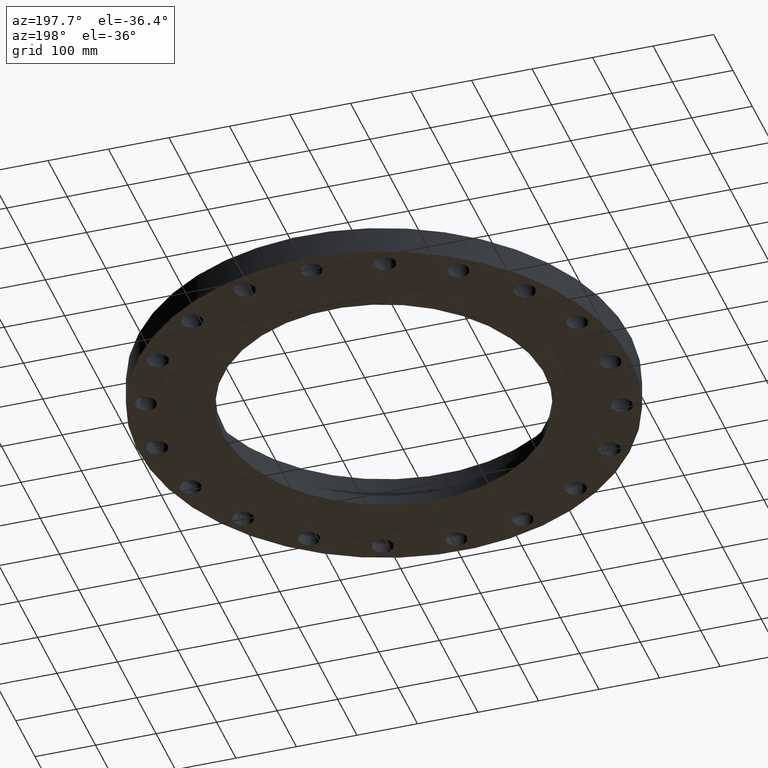
[diagram: clean part render]
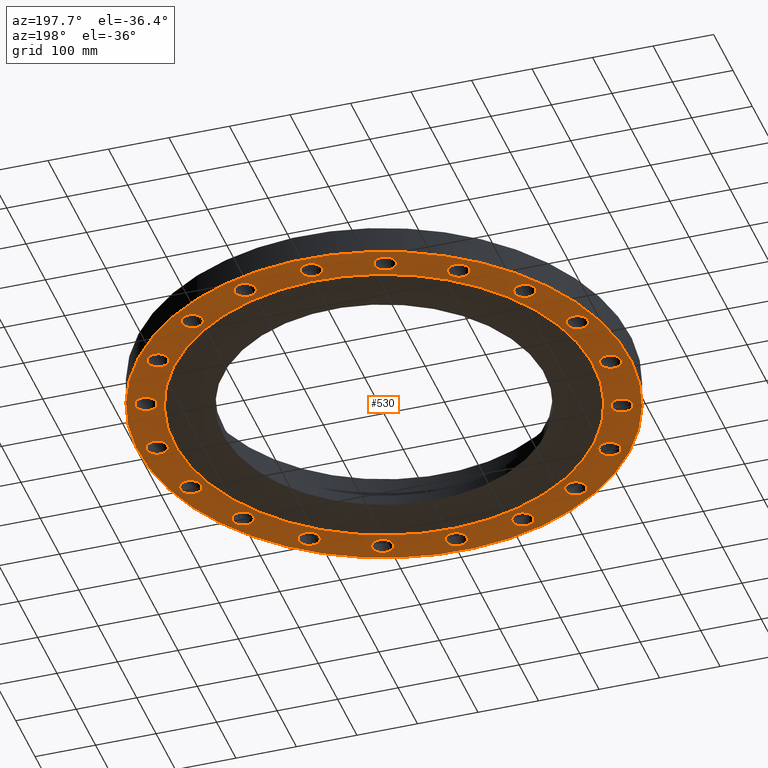
[diagram: same view with one face highlighted and labeled with its STEP entity id]
A machine part, auxiliary view. The second image highlights one B-rep face of the part: STEP entity #530.
In plain terms, the highlighted planar face has unit normal (0, 0, -1).
Its self-contained STEP definition (entity closure, byte-faithful):
#123=AXIS2_PLACEMENT_3D('Plane Axis2P3D',#120,#121,#122) ;
#127=AXIS2_PLACEMENT_3D('Circle Axis2P3D',#125,#126,$) ;
#136=AXIS2_PLACEMENT_3D('Circle Axis2P3D',#134,#135,$) ;
#150=AXIS2_PLACEMENT_3D('Circle Axis2P3D',#148,#149,$) ;
#159=AXIS2_PLACEMENT_3D('Circle Axis2P3D',#157,#158,$) ;
#168=AXIS2_PLACEMENT_3D('Circle Axis2P3D',#166,#167,$) ;
#177=AXIS2_PLACEMENT_3D('Circle Axis2P3D',#175,#176,$) ;
#190=AXIS2_PLACEMENT_3D('Circle Axis2P3D',#188,#189,$) ;
#199=AXIS2_PLACEMENT_3D('Circle Axis2P3D',#197,#198,$) ;
#208=AXIS2_PLACEMENT_3D('Circle Axis2P3D',#206,#207,$) ;
#217=AXIS2_PLACEMENT_3D('Circle Axis2P3D',#215,#216,$) ;
#226=AXIS2_PLACEMENT_3D('Circle Axis2P3D',#224,#225,$) ;
#235=AXIS2_PLACEMENT_3D('Circle Axis2P3D',#233,#234,$) ;
#244=AXIS2_PLACEMENT_3D('Circle Axis2P3D',#242,#243,$) ;
#253=AXIS2_PLACEMENT_3D('Circle Axis2P3D',#251,#252,$) ;
#262=AXIS2_PLACEMENT_3D('Circle Axis2P3D',#260,#261,$) ;
#271=AXIS2_PLACEMENT_3D('Circle Axis2P3D',#269,#270,$) ;
#280=AXIS2_PLACEMENT_3D('Circle Axis2P3D',#278,#279,$) ;
#289=AXIS2_PLACEMENT_3D('Circle Axis2P3D',#287,#288,$) ;
#298=AXIS2_PLACEMENT_3D('Circle Axis2P3D',#296,#297,$) ;
#307=AXIS2_PLACEMENT_3D('Circle Axis2P3D',#305,#306,$) ;
#316=AXIS2_PLACEMENT_3D('Circle Axis2P3D',#314,#315,$) ;
#325=AXIS2_PLACEMENT_3D('Circle Axis2P3D',#323,#324,$) ;
#334=AXIS2_PLACEMENT_3D('Circle Axis2P3D',#332,#333,$) ;
#343=AXIS2_PLACEMENT_3D('Circle Axis2P3D',#341,#342,$) ;
#352=AXIS2_PLACEMENT_3D('Circle Axis2P3D',#350,#351,$) ;
#361=AXIS2_PLACEMENT_3D('Circle Axis2P3D',#359,#360,$) ;
#370=AXIS2_PLACEMENT_3D('Circle Axis2P3D',#368,#369,$) ;
#379=AXIS2_PLACEMENT_3D('Circle Axis2P3D',#377,#378,$) ;
#388=AXIS2_PLACEMENT_3D('Circle Axis2P3D',#386,#387,$) ;
#397=AXIS2_PLACEMENT_3D('Circle Axis2P3D',#395,#396,$) ;
#406=AXIS2_PLACEMENT_3D('Circle Axis2P3D',#404,#405,$) ;
#415=AXIS2_PLACEMENT_3D('Circle Axis2P3D',#413,#414,$) ;
#424=AXIS2_PLACEMENT_3D('Circle Axis2P3D',#422,#423,$) ;
#433=AXIS2_PLACEMENT_3D('Circle Axis2P3D',#431,#432,$) ;
#442=AXIS2_PLACEMENT_3D('Circle Axis2P3D',#440,#441,$) ;
#451=AXIS2_PLACEMENT_3D('Circle Axis2P3D',#449,#450,$) ;
#460=AXIS2_PLACEMENT_3D('Circle Axis2P3D',#458,#459,$) ;
#469=AXIS2_PLACEMENT_3D('Circle Axis2P3D',#467,#468,$) ;
#478=AXIS2_PLACEMENT_3D('Circle Axis2P3D',#476,#477,$) ;
#487=AXIS2_PLACEMENT_3D('Circle Axis2P3D',#485,#486,$) ;
#496=AXIS2_PLACEMENT_3D('Circle Axis2P3D',#494,#495,$) ;
#505=AXIS2_PLACEMENT_3D('Circle Axis2P3D',#503,#504,$) ;
#514=AXIS2_PLACEMENT_3D('Circle Axis2P3D',#512,#513,$) ;
#523=AXIS2_PLACEMENT_3D('Circle Axis2P3D',#521,#522,$) ;
#120=CARTESIAN_POINT('Axis2P3D Location',(0.,10.469,0.)) ;
#125=CARTESIAN_POINT('Axis2P3D Location',(0.,0.,0.)) ;
#129=CARTESIAN_POINT('Vertex',(-6.53217296351,-11.9570624058,0.)) ;
#131=CARTESIAN_POINT('Vertex',(6.53217296351,11.9570624058,0.)) ;
#134=CARTESIAN_POINT('Axis2P3D Location',(0.,0.,0.)) ;
#148=CARTESIAN_POINT('Axis2P3D Location',(0.,0.,0.)) ;
#152=CARTESIAN_POINT('Vertex',(-7.6708086177,-14.0413209903,1.95818864186E-015)) ;
#154=CARTESIAN_POINT('Vertex',(7.6708086177,14.0413209903,1.95818864186E-015)) ;
#157=CARTESIAN_POINT('Axis2P3D Location',(0.,0.,0.)) ;
#166=CARTESIAN_POINT('Axis2P3D Location',(14.7500000001,0.,0.)) ;
#170=CARTESIAN_POINT('Vertex',(15.3555319678,-0.330803621638,0.)) ;
#172=CARTESIAN_POINT('Vertex',(14.1444680324,0.330803621638,0.)) ;
#175=CARTESIAN_POINT('Axis2P3D Location',(14.7500000001,0.,0.)) ;
#188=CARTESIAN_POINT('Axis2P3D Location',(14.0280836154,-4.55800066705,0.)) ;
#192=CARTESIAN_POINT('Vertex',(13.5544124326,-4.05626805842,0.)) ;
#194=CARTESIAN_POINT('Vertex',(14.5017547982,-5.05973327568,0.)) ;
#197=CARTESIAN_POINT('Axis2P3D Location',(14.0280836154,-4.55800066705,0.)) ;
#206=CARTESIAN_POINT('Axis2P3D Location',(11.9330006671,-8.66983247135,0.)) ;
#210=CARTESIAN_POINT('Vertex',(11.6375565048,-8.04628395923,0.)) ;
#212=CARTESIAN_POINT('Vertex',(12.2284448294,-9.29338098346,-1.67844740731E-015)) ;
#215=CARTESIAN_POINT('Axis2P3D Location',(11.9330006671,-8.66983247135,0.)) ;
#224=CARTESIAN_POINT('Axis2P3D Location',(8.66983247135,-11.9330006671,0.)) ;
#228=CARTESIAN_POINT('Vertex',(8.58153546265,-11.2486735244,0.)) ;
#230=CARTESIAN_POINT('Vertex',(8.75812948005,-12.6173278098,0.)) ;
#233=CARTESIAN_POINT('Axis2P3D Location',(8.66983247135,-11.9330006671,0.)) ;
#242=CARTESIAN_POINT('Axis2P3D Location',(4.55800066705,-14.0280836154,0.)) ;
#246=CARTESIAN_POINT('Vertex',(4.68549393836,-13.3499645508,0.)) ;
#248=CARTESIAN_POINT('Vertex',(4.43050739573,-14.70620268,0.)) ;
#251=CARTESIAN_POINT('Axis2P3D Location',(4.55800066705,-14.0280836154,0.)) ;
#260=CARTESIAN_POINT('Axis2P3D Location',(4.12618320963E-015,-14.7500000001,0.)) ;
#264=CARTESIAN_POINT('Vertex',(0.330803621638,-14.1444680324,0.)) ;
#266=CARTESIAN_POINT('Vertex',(-0.330803621638,-15.3555319678,0.)) ;
#269=CARTESIAN_POINT('Axis2P3D Location',(4.33598913554E-015,-14.7500000001,0.)) ;
#278=CARTESIAN_POINT('Axis2P3D Location',(-4.55800066705,-14.0280836154,0.)) ;
#282=CARTESIAN_POINT('Vertex',(-4.05626805842,-13.5544124326,0.)) ;
#284=CARTESIAN_POINT('Vertex',(-5.05973327568,-14.5017547982,0.)) ;
#287=CARTESIAN_POINT('Axis2P3D Location',(-4.55800066705,-14.0280836154,0.)) ;
#296=CARTESIAN_POINT('Axis2P3D Location',(-8.66983247135,-11.9330006671,0.)) ;
#300=CARTESIAN_POINT('Vertex',(-8.04628395923,-11.6375565048,0.)) ;
#302=CARTESIAN_POINT('Vertex',(-9.29338098346,-12.2284448294,0.)) ;
#305=CARTESIAN_POINT('Axis2P3D Location',(-8.66983247135,-11.9330006671,0.)) ;
#314=CARTESIAN_POINT('Axis2P3D Location',(-11.9330006671,-8.66983247135,0.)) ;
#318=CARTESIAN_POINT('Vertex',(-11.2486735244,-8.58153546265,0.)) ;
#320=CARTESIAN_POINT('Vertex',(-12.6173278098,-8.75812948005,0.)) ;
#323=CARTESIAN_POINT('Axis2P3D Location',(-11.9330006671,-8.66983247135,0.)) ;
#332=CARTESIAN_POINT('Axis2P3D Location',(-14.0280836154,-4.55800066705,0.)) ;
#336=CARTESIAN_POINT('Vertex',(-13.3499645508,-4.68549393836,0.)) ;
#338=CARTESIAN_POINT('Vertex',(-14.70620268,-4.43050739573,0.)) ;
#341=CARTESIAN_POINT('Axis2P3D Location',(-14.0280836154,-4.55800066705,0.)) ;
#350=CARTESIAN_POINT('Axis2P3D Location',(-14.7500000001,-8.95171950564E-015,0.)) ;
#354=CARTESIAN_POINT('Vertex',(-14.1444680324,-0.330803621638,0.)) ;
#356=CARTESIAN_POINT('Vertex',(-15.3555319678,0.330803621638,0.)) ;
#359=CARTESIAN_POINT('Axis2P3D Location',(-14.7500000001,-8.95171950564E-015,0.)) ;
#368=CARTESIAN_POINT('Axis2P3D Location',(-14.0280836154,4.55800066705,0.)) ;
#372=CARTESIAN_POINT('Vertex',(-13.5544124326,4.05626805842,0.)) ;
#374=CARTESIAN_POINT('Vertex',(-14.5017547982,5.05973327568,0.)) ;
#377=CARTESIAN_POINT('Axis2P3D Location',(-14.0280836154,4.55800066705,0.)) ;
#386=CARTESIAN_POINT('Axis2P3D Location',(-11.9330006671,8.66983247135,0.)) ;
#390=CARTESIAN_POINT('Vertex',(-11.6375565048,8.04628395923,0.)) ;
#392=CARTESIAN_POINT('Vertex',(-12.2284448294,9.29338098346,-1.67844740731E-015)) ;
#395=CARTESIAN_POINT('Axis2P3D Location',(-11.9330006671,8.66983247135,0.)) ;
#404=CARTESIAN_POINT('Axis2P3D Location',(-8.66983247135,11.9330006671,0.)) ;
#408=CARTESIAN_POINT('Vertex',(-8.58153546265,11.2486735244,0.)) ;
#410=CARTESIAN_POINT('Vertex',(-8.75812948005,12.6173278098,0.)) ;
#413=CARTESIAN_POINT('Axis2P3D Location',(-8.66983247135,11.9330006671,0.)) ;
#422=CARTESIAN_POINT('Axis2P3D Location',(-4.55800066705,14.0280836154,0.)) ;
#426=CARTESIAN_POINT('Vertex',(-4.68549393836,13.3499645508,0.)) ;
#428=CARTESIAN_POINT('Vertex',(-4.43050739573,14.70620268,-1.67844740731E-015)) ;
#431=CARTESIAN_POINT('Axis2P3D Location',(-4.55800066705,14.0280836154,0.)) ;
#440=CARTESIAN_POINT('Axis2P3D Location',(-1.61550562953E-014,14.7500000001,0.)) ;
#444=CARTESIAN_POINT('Vertex',(-0.330803621638,14.1444680324,0.)) ;
#446=CARTESIAN_POINT('Vertex',(0.330803621638,15.3555319678,0.)) ;
#449=CARTESIAN_POINT('Axis2P3D Location',(-1.5455703209E-014,14.7500000001,0.)) ;
#458=CARTESIAN_POINT('Axis2P3D Location',(4.55800066705,14.0280836154,0.)) ;
#462=CARTESIAN_POINT('Vertex',(4.05626805842,13.5544124326,0.)) ;
#464=CARTESIAN_POINT('Vertex',(5.05973327568,14.5017547982,-1.67844740731E-015)) ;
#467=CARTESIAN_POINT('Axis2P3D Location',(4.55800066705,14.0280836154,0.)) ;
#476=CARTESIAN_POINT('Axis2P3D Location',(8.66983247135,11.9330006671,0.)) ;
#480=CARTESIAN_POINT('Vertex',(8.04628395923,11.6375565048,0.)) ;
#482=CARTESIAN_POINT('Vertex',(9.29338098346,12.2284448294,0.)) ;
#485=CARTESIAN_POINT('Axis2P3D Location',(8.66983247135,11.9330006671,0.)) ;
#494=CARTESIAN_POINT('Axis2P3D Location',(11.9330006671,8.66983247135,0.)) ;
#498=CARTESIAN_POINT('Vertex',(11.2486735244,8.58153546265,0.)) ;
#500=CARTESIAN_POINT('Vertex',(12.6173278098,8.75812948005,0.)) ;
#503=CARTESIAN_POINT('Axis2P3D Location',(11.9330006671,8.66983247135,0.)) ;
#512=CARTESIAN_POINT('Axis2P3D Location',(14.0280836154,4.55800066705,0.)) ;
#516=CARTESIAN_POINT('Vertex',(13.3499645508,4.68549393836,0.)) ;
#518=CARTESIAN_POINT('Vertex',(14.70620268,4.43050739573,-1.67844740731E-015)) ;
#521=CARTESIAN_POINT('Axis2P3D Location',(14.0280836154,4.55800066705,0.)) ;
#121=DIRECTION('Axis2P3D Direction',(0.,0.,-0.0393700787402)) ;
#122=DIRECTION('Axis2P3D XDirection',(0.0393700787402,0.,0.)) ;
#126=DIRECTION('Axis2P3D Direction',(0.,0.,-0.0393700787402)) ;
#135=DIRECTION('Axis2P3D Direction',(0.,0.,-0.0393700787402)) ;
#149=DIRECTION('Axis2P3D Direction',(0.,0.,-0.0393700787402)) ;
#158=DIRECTION('Axis2P3D Direction',(0.,0.,-0.0393700787402)) ;
#167=DIRECTION('Axis2P3D Direction',(0.,0.,-0.0393700787402)) ;
#176=DIRECTION('Axis2P3D Direction',(0.,0.,-0.0393700787402)) ;
#189=DIRECTION('Axis2P3D Direction',(0.,0.,-0.0393700787402)) ;
#198=DIRECTION('Axis2P3D Direction',(0.,0.,-0.0393700787402)) ;
#207=DIRECTION('Axis2P3D Direction',(0.,0.,-0.0393700787402)) ;
#216=DIRECTION('Axis2P3D Direction',(0.,0.,-0.0393700787402)) ;
#225=DIRECTION('Axis2P3D Direction',(0.,0.,-0.0393700787402)) ;
#234=DIRECTION('Axis2P3D Direction',(0.,0.,-0.0393700787402)) ;
#243=DIRECTION('Axis2P3D Direction',(0.,0.,-0.0393700787402)) ;
#252=DIRECTION('Axis2P3D Direction',(0.,0.,-0.0393700787402)) ;
#261=DIRECTION('Axis2P3D Direction',(0.,0.,-0.0393700787402)) ;
#270=DIRECTION('Axis2P3D Direction',(0.,0.,-0.0393700787402)) ;
#279=DIRECTION('Axis2P3D Direction',(0.,0.,-0.0393700787402)) ;
#288=DIRECTION('Axis2P3D Direction',(0.,0.,-0.0393700787402)) ;
#297=DIRECTION('Axis2P3D Direction',(0.,0.,-0.0393700787402)) ;
#306=DIRECTION('Axis2P3D Direction',(0.,0.,-0.0393700787402)) ;
#315=DIRECTION('Axis2P3D Direction',(0.,0.,-0.0393700787402)) ;
#324=DIRECTION('Axis2P3D Direction',(0.,0.,-0.0393700787402)) ;
#333=DIRECTION('Axis2P3D Direction',(0.,0.,-0.0393700787402)) ;
#342=DIRECTION('Axis2P3D Direction',(0.,0.,-0.0393700787402)) ;
#351=DIRECTION('Axis2P3D Direction',(0.,0.,-0.0393700787402)) ;
#360=DIRECTION('Axis2P3D Direction',(0.,0.,-0.0393700787402)) ;
#369=DIRECTION('Axis2P3D Direction',(0.,0.,-0.0393700787402)) ;
#378=DIRECTION('Axis2P3D Direction',(0.,0.,-0.0393700787402)) ;
#387=DIRECTION('Axis2P3D Direction',(0.,0.,-0.0393700787402)) ;
#396=DIRECTION('Axis2P3D Direction',(0.,0.,-0.0393700787402)) ;
#405=DIRECTION('Axis2P3D Direction',(0.,0.,-0.0393700787402)) ;
#414=DIRECTION('Axis2P3D Direction',(0.,0.,-0.0393700787402)) ;
#423=DIRECTION('Axis2P3D Direction',(0.,0.,-0.0393700787402)) ;
#432=DIRECTION('Axis2P3D Direction',(0.,0.,-0.0393700787402)) ;
#441=DIRECTION('Axis2P3D Direction',(0.,0.,-0.0393700787402)) ;
#450=DIRECTION('Axis2P3D Direction',(0.,0.,-0.0393700787402)) ;
#459=DIRECTION('Axis2P3D Direction',(0.,0.,-0.0393700787402)) ;
#468=DIRECTION('Axis2P3D Direction',(0.,0.,-0.0393700787402)) ;
#477=DIRECTION('Axis2P3D Direction',(0.,0.,-0.0393700787402)) ;
#486=DIRECTION('Axis2P3D Direction',(0.,0.,-0.0393700787402)) ;
#495=DIRECTION('Axis2P3D Direction',(0.,0.,-0.0393700787402)) ;
#504=DIRECTION('Axis2P3D Direction',(0.,0.,-0.0393700787402)) ;
#513=DIRECTION('Axis2P3D Direction',(0.,0.,-0.0393700787402)) ;
#522=DIRECTION('Axis2P3D Direction',(0.,0.,-0.0393700787402)) ;
#163=ORIENTED_EDGE('',*,*,#156,.T.) ;
#164=ORIENTED_EDGE('',*,*,#161,.T.) ;
#181=ORIENTED_EDGE('',*,*,#174,.F.) ;
#182=ORIENTED_EDGE('',*,*,#179,.F.) ;
#185=ORIENTED_EDGE('',*,*,#138,.F.) ;
#186=ORIENTED_EDGE('',*,*,#133,.F.) ;
#203=ORIENTED_EDGE('',*,*,#196,.F.) ;
#204=ORIENTED_EDGE('',*,*,#201,.F.) ;
#221=ORIENTED_EDGE('',*,*,#214,.F.) ;
#222=ORIENTED_EDGE('',*,*,#219,.F.) ;
#239=ORIENTED_EDGE('',*,*,#232,.F.) ;
#240=ORIENTED_EDGE('',*,*,#237,.F.) ;
#257=ORIENTED_EDGE('',*,*,#250,.F.) ;
#258=ORIENTED_EDGE('',*,*,#255,.F.) ;
#275=ORIENTED_EDGE('',*,*,#268,.F.) ;
#276=ORIENTED_EDGE('',*,*,#273,.F.) ;
#293=ORIENTED_EDGE('',*,*,#286,.F.) ;
#294=ORIENTED_EDGE('',*,*,#291,.F.) ;
#311=ORIENTED_EDGE('',*,*,#304,.F.) ;
#312=ORIENTED_EDGE('',*,*,#309,.F.) ;
#329=ORIENTED_EDGE('',*,*,#322,.F.) ;
#330=ORIENTED_EDGE('',*,*,#327,.F.) ;
#347=ORIENTED_EDGE('',*,*,#340,.F.) ;
#348=ORIENTED_EDGE('',*,*,#345,.F.) ;
#365=ORIENTED_EDGE('',*,*,#358,.F.) ;
#366=ORIENTED_EDGE('',*,*,#363,.F.) ;
#383=ORIENTED_EDGE('',*,*,#376,.F.) ;
#384=ORIENTED_EDGE('',*,*,#381,.F.) ;
#401=ORIENTED_EDGE('',*,*,#394,.F.) ;
#402=ORIENTED_EDGE('',*,*,#399,.F.) ;
#419=ORIENTED_EDGE('',*,*,#412,.F.) ;
#420=ORIENTED_EDGE('',*,*,#417,.F.) ;
#437=ORIENTED_EDGE('',*,*,#430,.F.) ;
#438=ORIENTED_EDGE('',*,*,#435,.F.) ;
#455=ORIENTED_EDGE('',*,*,#448,.F.) ;
#456=ORIENTED_EDGE('',*,*,#453,.F.) ;
#473=ORIENTED_EDGE('',*,*,#466,.F.) ;
#474=ORIENTED_EDGE('',*,*,#471,.F.) ;
#491=ORIENTED_EDGE('',*,*,#484,.F.) ;
#492=ORIENTED_EDGE('',*,*,#489,.F.) ;
#509=ORIENTED_EDGE('',*,*,#502,.F.) ;
#510=ORIENTED_EDGE('',*,*,#507,.F.) ;
#527=ORIENTED_EDGE('',*,*,#520,.F.) ;
#528=ORIENTED_EDGE('',*,*,#525,.F.) ;
#183=FACE_BOUND('',#180,.T.) ;
#187=FACE_BOUND('',#184,.T.) ;
#205=FACE_BOUND('',#202,.T.) ;
#223=FACE_BOUND('',#220,.T.) ;
#241=FACE_BOUND('',#238,.T.) ;
#259=FACE_BOUND('',#256,.T.) ;
#277=FACE_BOUND('',#274,.T.) ;
#295=FACE_BOUND('',#292,.T.) ;
#313=FACE_BOUND('',#310,.T.) ;
#331=FACE_BOUND('',#328,.T.) ;
#349=FACE_BOUND('',#346,.T.) ;
#367=FACE_BOUND('',#364,.T.) ;
#385=FACE_BOUND('',#382,.T.) ;
#403=FACE_BOUND('',#400,.T.) ;
#421=FACE_BOUND('',#418,.T.) ;
#439=FACE_BOUND('',#436,.T.) ;
#457=FACE_BOUND('',#454,.T.) ;
#475=FACE_BOUND('',#472,.T.) ;
#493=FACE_BOUND('',#490,.T.) ;
#511=FACE_BOUND('',#508,.T.) ;
#529=FACE_BOUND('',#526,.T.) ;
#530=ADVANCED_FACE('PartBody',(#165,#183,#187,#205,#223,#241,#259,#277,#295,#313,#331,#349,#367,#385,#403,#421,#439,#457,#475,#493,#511,#529),#124,.T.) ;
#128=CIRCLE('generated circle',#127,13.6250000001) ;
#137=CIRCLE('generated circle',#136,13.6250000001) ;
#151=CIRCLE('generated circle',#150,16.0000000001) ;
#160=CIRCLE('generated circle',#159,16.0000000001) ;
#169=CIRCLE('generated circle',#168,0.690000000003) ;
#178=CIRCLE('generated circle',#177,0.690000000003) ;
#191=CIRCLE('generated circle',#190,0.690000000003) ;
#200=CIRCLE('generated circle',#199,0.690000000003) ;
#209=CIRCLE('generated circle',#208,0.690000000003) ;
#218=CIRCLE('generated circle',#217,0.690000000003) ;
#227=CIRCLE('generated circle',#226,0.690000000003) ;
#236=CIRCLE('generated circle',#235,0.690000000003) ;
#245=CIRCLE('generated circle',#244,0.690000000003) ;
#254=CIRCLE('generated circle',#253,0.690000000003) ;
#263=CIRCLE('generated circle',#262,0.690000000003) ;
#272=CIRCLE('generated circle',#271,0.690000000003) ;
#281=CIRCLE('generated circle',#280,0.690000000003) ;
#290=CIRCLE('generated circle',#289,0.690000000003) ;
#299=CIRCLE('generated circle',#298,0.690000000003) ;
#308=CIRCLE('generated circle',#307,0.690000000003) ;
#317=CIRCLE('generated circle',#316,0.690000000003) ;
#326=CIRCLE('generated circle',#325,0.690000000003) ;
#335=CIRCLE('generated circle',#334,0.690000000003) ;
#344=CIRCLE('generated circle',#343,0.690000000003) ;
#353=CIRCLE('generated circle',#352,0.690000000003) ;
#362=CIRCLE('generated circle',#361,0.690000000003) ;
#371=CIRCLE('generated circle',#370,0.690000000003) ;
#380=CIRCLE('generated circle',#379,0.690000000003) ;
#389=CIRCLE('generated circle',#388,0.690000000003) ;
#398=CIRCLE('generated circle',#397,0.690000000003) ;
#407=CIRCLE('generated circle',#406,0.690000000003) ;
#416=CIRCLE('generated circle',#415,0.690000000003) ;
#425=CIRCLE('generated circle',#424,0.690000000003) ;
#434=CIRCLE('generated circle',#433,0.690000000003) ;
#443=CIRCLE('generated circle',#442,0.690000000003) ;
#452=CIRCLE('generated circle',#451,0.690000000003) ;
#461=CIRCLE('generated circle',#460,0.690000000003) ;
#470=CIRCLE('generated circle',#469,0.690000000003) ;
#479=CIRCLE('generated circle',#478,0.690000000003) ;
#488=CIRCLE('generated circle',#487,0.690000000003) ;
#497=CIRCLE('generated circle',#496,0.690000000003) ;
#506=CIRCLE('generated circle',#505,0.690000000003) ;
#515=CIRCLE('generated circle',#514,0.690000000003) ;
#524=CIRCLE('generated circle',#523,0.690000000003) ;
#133=EDGE_CURVE('',#130,#132,#128,.T.) ;
#138=EDGE_CURVE('',#132,#130,#137,.T.) ;
#156=EDGE_CURVE('',#153,#155,#151,.T.) ;
#161=EDGE_CURVE('',#155,#153,#160,.T.) ;
#174=EDGE_CURVE('',#171,#173,#169,.T.) ;
#179=EDGE_CURVE('',#173,#171,#178,.T.) ;
#196=EDGE_CURVE('',#193,#195,#191,.T.) ;
#201=EDGE_CURVE('',#195,#193,#200,.T.) ;
#214=EDGE_CURVE('',#211,#213,#209,.T.) ;
#219=EDGE_CURVE('',#213,#211,#218,.T.) ;
#232=EDGE_CURVE('',#229,#231,#227,.T.) ;
#237=EDGE_CURVE('',#231,#229,#236,.T.) ;
#250=EDGE_CURVE('',#247,#249,#245,.T.) ;
#255=EDGE_CURVE('',#249,#247,#254,.T.) ;
#268=EDGE_CURVE('',#265,#267,#263,.T.) ;
#273=EDGE_CURVE('',#267,#265,#272,.T.) ;
#286=EDGE_CURVE('',#283,#285,#281,.T.) ;
#291=EDGE_CURVE('',#285,#283,#290,.T.) ;
#304=EDGE_CURVE('',#301,#303,#299,.T.) ;
#309=EDGE_CURVE('',#303,#301,#308,.T.) ;
#322=EDGE_CURVE('',#319,#321,#317,.T.) ;
#327=EDGE_CURVE('',#321,#319,#326,.T.) ;
#340=EDGE_CURVE('',#337,#339,#335,.T.) ;
#345=EDGE_CURVE('',#339,#337,#344,.T.) ;
#358=EDGE_CURVE('',#355,#357,#353,.T.) ;
#363=EDGE_CURVE('',#357,#355,#362,.T.) ;
#376=EDGE_CURVE('',#373,#375,#371,.T.) ;
#381=EDGE_CURVE('',#375,#373,#380,.T.) ;
#394=EDGE_CURVE('',#391,#393,#389,.T.) ;
#399=EDGE_CURVE('',#393,#391,#398,.T.) ;
#412=EDGE_CURVE('',#409,#411,#407,.T.) ;
#417=EDGE_CURVE('',#411,#409,#416,.T.) ;
#430=EDGE_CURVE('',#427,#429,#425,.T.) ;
#435=EDGE_CURVE('',#429,#427,#434,.T.) ;
#448=EDGE_CURVE('',#445,#447,#443,.T.) ;
#453=EDGE_CURVE('',#447,#445,#452,.T.) ;
#466=EDGE_CURVE('',#463,#465,#461,.T.) ;
#471=EDGE_CURVE('',#465,#463,#470,.T.) ;
#484=EDGE_CURVE('',#481,#483,#479,.T.) ;
#489=EDGE_CURVE('',#483,#481,#488,.T.) ;
#502=EDGE_CURVE('',#499,#501,#497,.T.) ;
#507=EDGE_CURVE('',#501,#499,#506,.T.) ;
#520=EDGE_CURVE('',#517,#519,#515,.T.) ;
#525=EDGE_CURVE('',#519,#517,#524,.T.) ;
#162=EDGE_LOOP('',(#163,#164)) ;
#180=EDGE_LOOP('',(#181,#182)) ;
#184=EDGE_LOOP('',(#185,#186)) ;
#202=EDGE_LOOP('',(#203,#204)) ;
#220=EDGE_LOOP('',(#221,#222)) ;
#238=EDGE_LOOP('',(#239,#240)) ;
#256=EDGE_LOOP('',(#257,#258)) ;
#274=EDGE_LOOP('',(#275,#276)) ;
#292=EDGE_LOOP('',(#293,#294)) ;
#310=EDGE_LOOP('',(#311,#312)) ;
#328=EDGE_LOOP('',(#329,#330)) ;
#346=EDGE_LOOP('',(#347,#348)) ;
#364=EDGE_LOOP('',(#365,#366)) ;
#382=EDGE_LOOP('',(#383,#384)) ;
#400=EDGE_LOOP('',(#401,#402)) ;
#418=EDGE_LOOP('',(#419,#420)) ;
#436=EDGE_LOOP('',(#437,#438)) ;
#454=EDGE_LOOP('',(#455,#456)) ;
#472=EDGE_LOOP('',(#473,#474)) ;
#490=EDGE_LOOP('',(#491,#492)) ;
#508=EDGE_LOOP('',(#509,#510)) ;
#526=EDGE_LOOP('',(#527,#528)) ;
#165=FACE_OUTER_BOUND('',#162,.T.) ;
#124=PLANE('',#123) ;
#130=VERTEX_POINT('',#129) ;
#132=VERTEX_POINT('',#131) ;
#153=VERTEX_POINT('',#152) ;
#155=VERTEX_POINT('',#154) ;
#171=VERTEX_POINT('',#170) ;
#173=VERTEX_POINT('',#172) ;
#193=VERTEX_POINT('',#192) ;
#195=VERTEX_POINT('',#194) ;
#211=VERTEX_POINT('',#210) ;
#213=VERTEX_POINT('',#212) ;
#229=VERTEX_POINT('',#228) ;
#231=VERTEX_POINT('',#230) ;
#247=VERTEX_POINT('',#246) ;
#249=VERTEX_POINT('',#248) ;
#265=VERTEX_POINT('',#264) ;
#267=VERTEX_POINT('',#266) ;
#283=VERTEX_POINT('',#282) ;
#285=VERTEX_POINT('',#284) ;
#301=VERTEX_POINT('',#300) ;
#303=VERTEX_POINT('',#302) ;
#319=VERTEX_POINT('',#318) ;
#321=VERTEX_POINT('',#320) ;
#337=VERTEX_POINT('',#336) ;
#339=VERTEX_POINT('',#338) ;
#355=VERTEX_POINT('',#354) ;
#357=VERTEX_POINT('',#356) ;
#373=VERTEX_POINT('',#372) ;
#375=VERTEX_POINT('',#374) ;
#391=VERTEX_POINT('',#390) ;
#393=VERTEX_POINT('',#392) ;
#409=VERTEX_POINT('',#408) ;
#411=VERTEX_POINT('',#410) ;
#427=VERTEX_POINT('',#426) ;
#429=VERTEX_POINT('',#428) ;
#445=VERTEX_POINT('',#444) ;
#447=VERTEX_POINT('',#446) ;
#463=VERTEX_POINT('',#462) ;
#465=VERTEX_POINT('',#464) ;
#481=VERTEX_POINT('',#480) ;
#483=VERTEX_POINT('',#482) ;
#499=VERTEX_POINT('',#498) ;
#501=VERTEX_POINT('',#500) ;
#517=VERTEX_POINT('',#516) ;
#519=VERTEX_POINT('',#518) ;